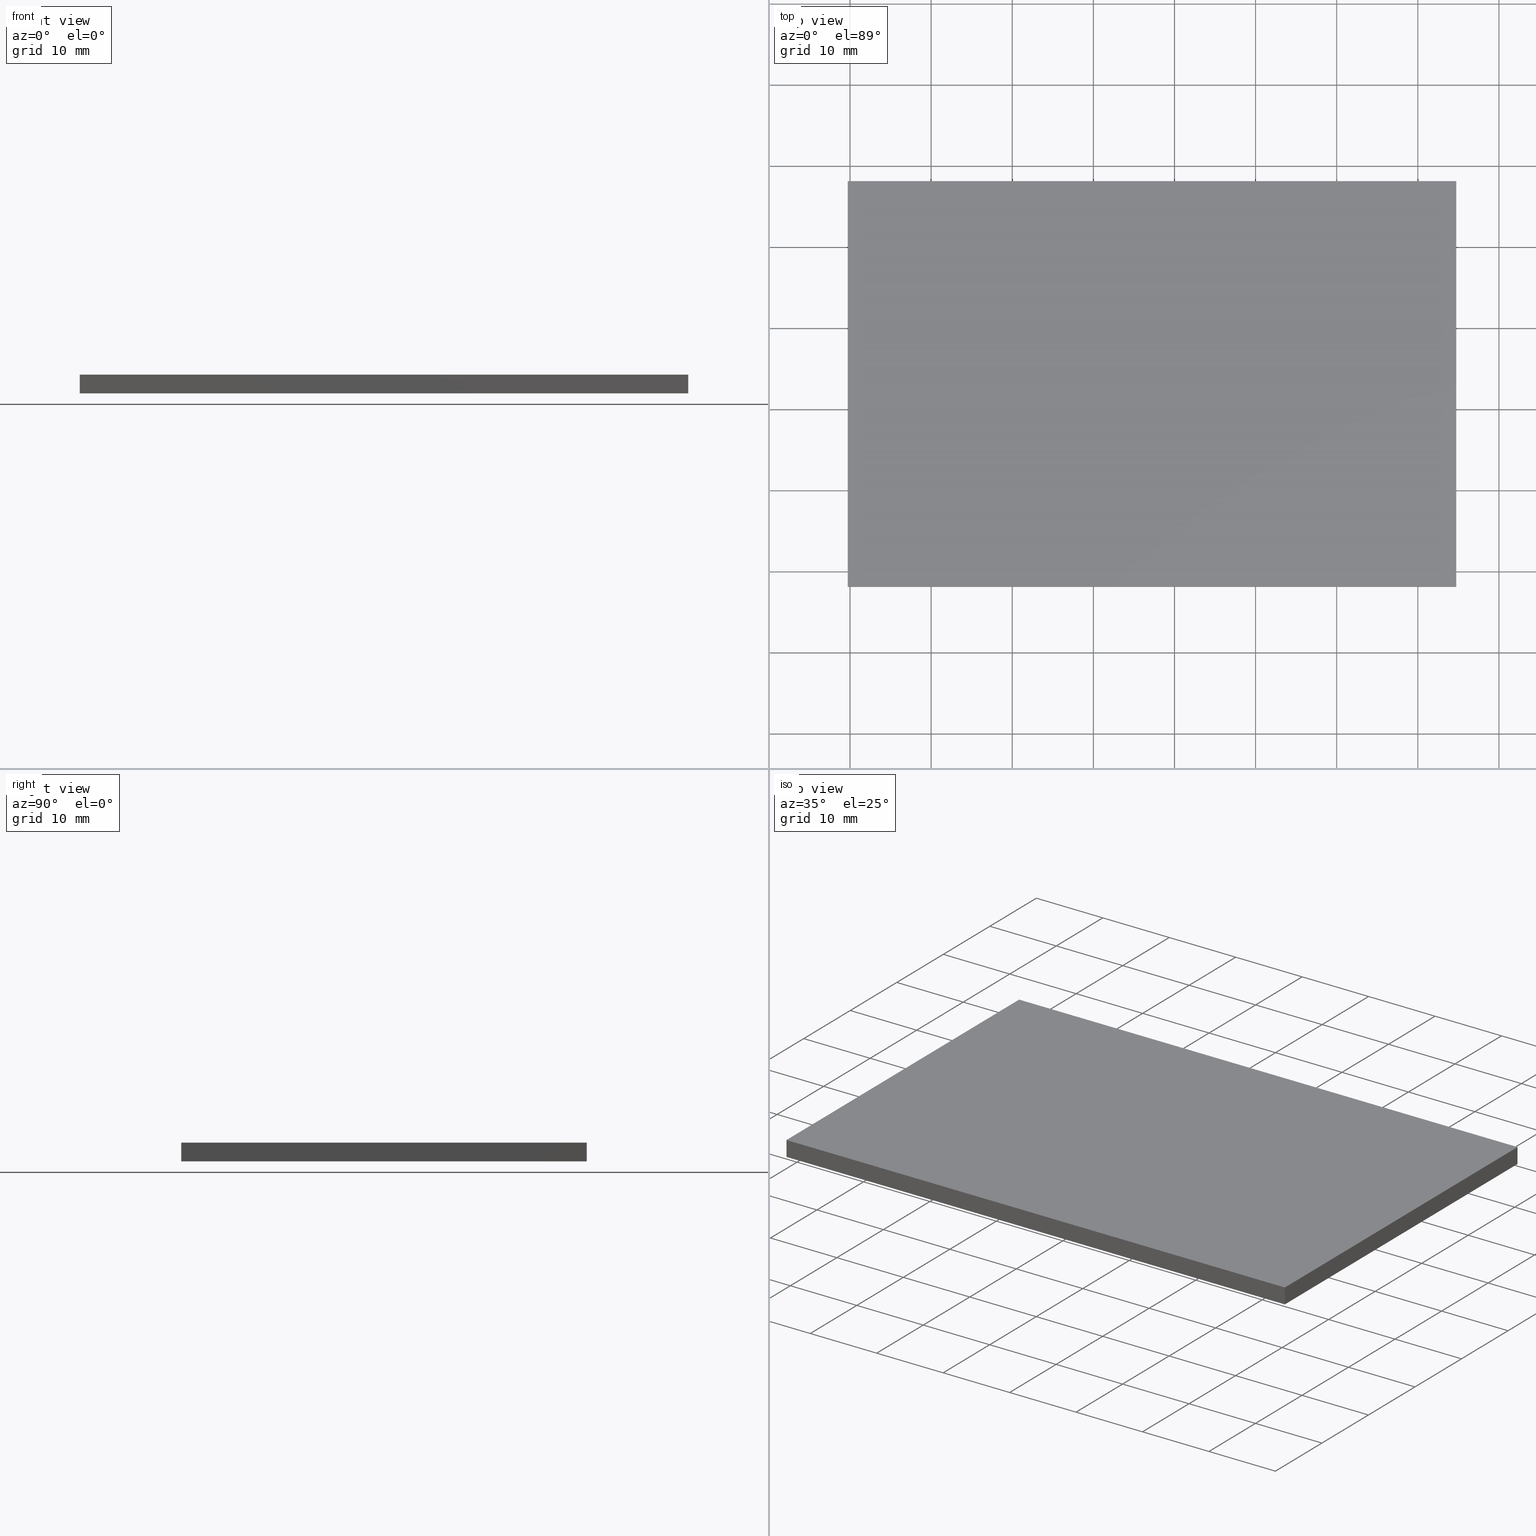
[diagram: canonical four-view strip — front | top / right | iso, engineering-drawing reading convention]
A machine part, canonical four-view strip (front | top / right | iso — engineering-drawing reading convention). The complete STEP part file that produces these views, byte-faithful:
ISO-10303-21;
HEADER;
FILE_DESCRIPTION (( 'STEP AP214' ),
    '1' );
FILE_NAME ('302525.STEP',
    '2019-08-13T06:59:10',
    ( '' ),
    ( '' ),
    'SwSTEP 2.0',
    'SolidWorks 2016',
    '' );
FILE_SCHEMA (( 'AUTOMOTIVE_DESIGN' ));
ENDSEC;

DATA;
#1 = ORIENTED_EDGE ( 'NONE', *, *, #138, .T. ) ;
#2 = VECTOR ( 'NONE', #85, 1000.000000000000000 ) ;
#3 = PRODUCT_CONTEXT ( 'NONE', #178, 'mechanical' ) ;
#4 =( LENGTH_UNIT ( ) NAMED_UNIT ( * ) SI_UNIT ( .MILLI., .METRE. ) );
#5 = DIRECTION ( 'NONE',  ( -0.0000000000000000000, -0.0000000000000000000, -1.000000000000000000 ) ) ;
#6 = ORIENTED_EDGE ( 'NONE', *, *, #28, .F. ) ;
#7 = DIRECTION ( 'NONE',  ( -0.0000000000000000000, 1.000000000000000000, -0.0000000000000000000 ) ) ;
#8 = ADVANCED_FACE ( 'NONE', ( #114 ), #147, .F. ) ;
#9 = MECHANICAL_DESIGN_GEOMETRIC_PRESENTATION_REPRESENTATION (  '', ( #88 ), #16 ) ;
#10 = ORIENTED_EDGE ( 'NONE', *, *, #137, .T. ) ;
#11 = PRESENTATION_LAYER_ASSIGNMENT (  '', '', ( #80 ) ) ;
#12 = MANIFOLD_SOLID_BREP ( '͹̨-����1', #20 ) ;
#13 = LINE ( 'NONE', #118, #73 ) ;
#14 = CARTESIAN_POINT ( 'NONE',  ( 179.7299678845673700, 148.1264836690531300, 2.299999999999999800 ) ) ;
#15 = PLANE ( 'NONE',  #151 ) ;
#16 =( GEOMETRIC_REPRESENTATION_CONTEXT ( 3 ) GLOBAL_UNCERTAINTY_ASSIGNED_CONTEXT ( ( #185 ) ) GLOBAL_UNIT_ASSIGNED_CONTEXT ( ( #50, #47, #161 ) ) REPRESENTATION_CONTEXT ( 'NONE', 'WORKASPACE' ) );
#17 = DIRECTION ( 'NONE',  ( 1.000000000000000000, 0.0000000000000000000, 0.0000000000000000000 ) ) ;
#18 = PLANE ( 'NONE',  #175 ) ;
#19 =( NAMED_UNIT ( * ) SI_UNIT ( $, .STERADIAN. ) SOLID_ANGLE_UNIT ( ) );
#20 = CLOSED_SHELL ( 'NONE', ( #182, #183, #166, #105, #23, #8 ) ) ;
#21 = FACE_OUTER_BOUND ( 'NONE', #38, .T. ) ;
#22 = DIRECTION ( 'NONE',  ( -1.000000000000000000, 0.0000000000000000000, 0.0000000000000000000 ) ) ;
#23 = ADVANCED_FACE ( 'NONE', ( #21 ), #49, .T. ) ;
#24 = EDGE_CURVE ( 'NONE', #153, #89, #42, .T. ) ;
#25 = EDGE_LOOP ( 'NONE', ( #197, #119, #165, #70 ) ) ;
#26 = ORIENTED_EDGE ( 'NONE', *, *, #138, .F. ) ;
#27 = FACE_OUTER_BOUND ( 'NONE', #25, .T. ) ;
#28 = EDGE_CURVE ( 'NONE', #109, #152, #56, .T. ) ;
#29 = ORIENTED_EDGE ( 'NONE', *, *, #191, .T. ) ;
#30 = VECTOR ( 'NONE', #160, 1000.000000000000000 ) ;
#31 = ORIENTED_EDGE ( 'NONE', *, *, #181, .F. ) ;
#32 = DIRECTION ( 'NONE',  ( -1.000000000000000000, -3.700743415417189100E-016, -0.0000000000000000000 ) ) ;
#33 = ORIENTED_EDGE ( 'NONE', *, *, #128, .T. ) ;
#34 = DIRECTION ( 'NONE',  ( 0.0000000000000000000, -0.0000000000000000000, 1.000000000000000000 ) ) ;
#35 = DIRECTION ( 'NONE',  ( 0.0000000000000000000, 0.0000000000000000000, 1.000000000000000000 ) ) ;
#36 = PLANE ( 'NONE',  #95 ) ;
#37 = CARTESIAN_POINT ( 'NONE',  ( 179.7299678845673700, 98.12648366905320100, 2.299999999999999800 ) ) ;
#38 = EDGE_LOOP ( 'NONE', ( #187, #100, #1, #29 ) ) ;
#39 = PRODUCT_DEFINITION_SHAPE ( 'NONE', 'NONE',  #54 ) ;
#40 = EDGE_CURVE ( 'NONE', #76, #194, #108, .T. ) ;
#41 = VECTOR ( 'NONE', #32, 1000.000000000000000 ) ;
#42 = LINE ( 'NONE', #143, #2 ) ;
#43 = VERTEX_POINT ( 'NONE', #145 ) ;
#44 = VECTOR ( 'NONE', #98, 1000.000000000000000 ) ;
#45 = CARTESIAN_POINT ( 'NONE',  ( 254.7299678845673700, 148.1264836690531600, 2.299999999999999800 ) ) ;
#46 = CARTESIAN_POINT ( 'NONE',  ( 179.7299678845673700, 148.1264836690531300, 0.0000000000000000000 ) ) ;
#47 =( NAMED_UNIT ( * ) PLANE_ANGLE_UNIT ( ) SI_UNIT ( $, .RADIAN. ) );
#48 = DIRECTION ( 'NONE',  ( -0.0000000000000000000, -0.0000000000000000000, -1.000000000000000000 ) ) ;
#49 = PLANE ( 'NONE',  #126 ) ;
#50 =( LENGTH_UNIT ( ) NAMED_UNIT ( * ) SI_UNIT ( .MILLI., .METRE. ) );
#51 = DIRECTION ( 'NONE',  ( -0.0000000000000000000, 0.0000000000000000000, 1.000000000000000000 ) ) ;
#52 = UNCERTAINTY_MEASURE_WITH_UNIT (LENGTH_MEASURE( 1.000000000000000100E-005 ), #4, 'distance_accuracy_value', 'NONE');
#53 = CARTESIAN_POINT ( 'NONE',  ( 179.7299678845673700, 148.1264836690531300, 0.0000000000000000000 ) ) ;
#54 = PRODUCT_DEFINITION ( 'δ֪', '', #61, #130 ) ;
#55 = VERTEX_POINT ( 'NONE', #196 ) ;
#56 = LINE ( 'NONE', #133, #167 ) ;
#57 = AXIS2_PLACEMENT_3D ( 'NONE', #115, #51, #117 ) ;
#58 = SHAPE_DEFINITION_REPRESENTATION ( #39, #82 ) ;
#59 = LINE ( 'NONE', #62, #83 ) ;
#60 = EDGE_LOOP ( 'NONE', ( #10, #6, #199, #168 ) ) ;
#61 = PRODUCT_DEFINITION_FORMATION_WITH_SPECIFIED_SOURCE ( '�κ�', '', #169, .NOT_KNOWN. ) ;
#62 = CARTESIAN_POINT ( 'NONE',  ( 179.7299678845673700, 148.1264836690531300, 2.299999999999999800 ) ) ;
#63 = DIRECTION ( 'NONE',  ( -0.0000000000000000000, 0.0000000000000000000, -1.000000000000000000 ) ) ;
#64 = AXIS2_PLACEMENT_3D ( 'NONE', #14, #132, #63 ) ;
#65 = ORIENTED_EDGE ( 'NONE', *, *, #200, .T. ) ;
#66 = CARTESIAN_POINT ( 'NONE',  ( 0.0000000000000000000, 0.0000000000000000000, 0.0000000000000000000 ) ) ;
#67 =( NAMED_UNIT ( * ) SI_UNIT ( $, .STERADIAN. ) SOLID_ANGLE_UNIT ( ) );
#68 = DIRECTION ( 'NONE',  ( 0.0000000000000000000, 0.0000000000000000000, 1.000000000000000000 ) ) ;
#69 = CARTESIAN_POINT ( 'NONE',  ( 254.7299678845673700, 98.12648366905320100, 0.0000000000000000000 ) ) ;
#70 = ORIENTED_EDGE ( 'NONE', *, *, #90, .T. ) ;
#71 = AXIS2_PLACEMENT_3D ( 'NONE', #66, #35, #192 ) ;
#72 = ORIENTED_EDGE ( 'NONE', *, *, #181, .T. ) ;
#73 = VECTOR ( 'NONE', #7, 1000.000000000000000 ) ;
#74 = ORIENTED_EDGE ( 'NONE', *, *, #28, .T. ) ;
#75 = LINE ( 'NONE', #45, #30 ) ;
#76 = VERTEX_POINT ( 'NONE', #46 ) ;
#77 = LINE ( 'NONE', #37, #140 ) ;
#78 = SURFACE_STYLE_USAGE ( .BOTH. , #172 ) ;
#79 = FILL_AREA_STYLE ('',( #120 ) ) ;
#80 = STYLED_ITEM ( 'NONE', ( #201 ), #12 ) ;
#81 = SURFACE_STYLE_FILL_AREA ( #79 ) ;
#82 = ADVANCED_BREP_SHAPE_REPRESENTATION ( '302525', ( #12, #71 ), #159 ) ;
#83 = VECTOR ( 'NONE', #5, 1000.000000000000000 ) ;
#84 = SURFACE_SIDE_STYLE ('',( #202 ) ) ;
#85 = DIRECTION ( 'NONE',  ( 0.0000000000000000000, -1.000000000000000000, 0.0000000000000000000 ) ) ;
#86 = DIRECTION ( 'NONE',  ( 1.000000000000000000, 0.0000000000000000000, 0.0000000000000000000 ) ) ;
#87 = PRODUCT_RELATED_PRODUCT_CATEGORY ( 'part', '', ( #169 ) ) ;
#88 = STYLED_ITEM ( 'NONE', ( #123 ), #82 ) ;
#89 = VERTEX_POINT ( 'NONE', #102 ) ;
#90 = EDGE_CURVE ( 'NONE', #153, #76, #59, .T. ) ;
#91 = ORIENTED_EDGE ( 'NONE', *, *, #40, .F. ) ;
#92 = VECTOR ( 'NONE', #136, 1000.000000000000000 ) ;
#93 = DIRECTION ( 'NONE',  ( -1.000000000000000000, -3.700743415417189100E-016, -0.0000000000000000000 ) ) ;
#94 = CARTESIAN_POINT ( 'NONE',  ( 179.7299678845673700, 148.1264836690531300, 0.0000000000000000000 ) ) ;
#95 = AXIS2_PLACEMENT_3D ( 'NONE', #179, #22, #68 ) ;
#96 = SURFACE_STYLE_USAGE ( .BOTH. , #84 ) ;
#97 = DIRECTION ( 'NONE',  ( 1.000000000000000000, 3.700743415417189100E-016, 0.0000000000000000000 ) ) ;
#98 = DIRECTION ( 'NONE',  ( 1.000000000000000000, 0.0000000000000000000, 0.0000000000000000000 ) ) ;
#99 = PRESENTATION_LAYER_ASSIGNMENT (  '', '', ( #88 ) ) ;
#100 = ORIENTED_EDGE ( 'NONE', *, *, #170, .T. ) ;
#101 = DIRECTION ( 'NONE',  ( 0.0000000000000000000, 1.000000000000000000, 0.0000000000000000000 ) ) ;
#102 = CARTESIAN_POINT ( 'NONE',  ( 179.7299678845673700, 98.12648366905320100, 2.299999999999999800 ) ) ;
#103 = DIRECTION ( 'NONE',  ( -0.0000000000000000000, 1.000000000000000000, -0.0000000000000000000 ) ) ;
#104 = VECTOR ( 'NONE', #103, 1000.000000000000000 ) ;
#105 = ADVANCED_FACE ( 'NONE', ( #186 ), #15, .F. ) ;
#106 =( GEOMETRIC_REPRESENTATION_CONTEXT ( 3 ) GLOBAL_UNCERTAINTY_ASSIGNED_CONTEXT ( ( #112 ) ) GLOBAL_UNIT_ASSIGNED_CONTEXT ( ( #141, #135, #19 ) ) REPRESENTATION_CONTEXT ( 'NONE', 'WORKASPACE' ) );
#107 = ORIENTED_EDGE ( 'NONE', *, *, #90, .F. ) ;
#108 = LINE ( 'NONE', #94, #129 ) ;
#109 = VERTEX_POINT ( 'NONE', #174 ) ;
#110 = LINE ( 'NONE', #134, #92 ) ;
#111 = ORIENTED_EDGE ( 'NONE', *, *, #137, .F. ) ;
#112 = UNCERTAINTY_MEASURE_WITH_UNIT (LENGTH_MEASURE( 1.000000000000000100E-005 ), #141, 'distance_accuracy_value', 'NONE');
#113 = FACE_OUTER_BOUND ( 'NONE', #124, .T. ) ;
#114 = FACE_OUTER_BOUND ( 'NONE', #155, .T. ) ;
#115 = CARTESIAN_POINT ( 'NONE',  ( 0.0000000000000000000, 0.0000000000000000000, 0.0000000000000000000 ) ) ;
#116 = LINE ( 'NONE', #149, #104 ) ;
#117 = DIRECTION ( 'NONE',  ( 1.000000000000000000, 0.0000000000000000000, 0.0000000000000000000 ) ) ;
#118 = CARTESIAN_POINT ( 'NONE',  ( 254.7299678845673700, 148.1264836690531600, 2.299999999999999800 ) ) ;
#119 = ORIENTED_EDGE ( 'NONE', *, *, #198, .F. ) ;
#120 = FILL_AREA_STYLE_COLOUR ( '', #150 ) ;
#121 = APPLICATION_PROTOCOL_DEFINITION ( 'draft international standard', 'automotive_design', 1998, #178 ) ;
#122 = CARTESIAN_POINT ( 'NONE',  ( 179.7299678845673700, 148.1264836690531300, 2.299999999999999800 ) ) ;
#123 = PRESENTATION_STYLE_ASSIGNMENT (( #96 ) ) ;
#124 = EDGE_LOOP ( 'NONE', ( #72, #139, #26, #74 ) ) ;
#125 = LINE ( 'NONE', #156, #44 ) ;
#126 = AXIS2_PLACEMENT_3D ( 'NONE', #163, #193, #17 ) ;
#127 = EDGE_LOOP ( 'NONE', ( #65, #107, #184, #33 ) ) ;
#128 = EDGE_CURVE ( 'NONE', #43, #55, #75, .T. ) ;
#129 = VECTOR ( 'NONE', #176, 1000.000000000000000 ) ;
#130 = PRODUCT_DEFINITION_CONTEXT ( 'detailed design', #177, 'design' ) ;
#131 = LINE ( 'NONE', #188, #41 ) ;
#132 = DIRECTION ( 'NONE',  ( 1.000000000000000000, 0.0000000000000000000, -0.0000000000000000000 ) ) ;
#133 = CARTESIAN_POINT ( 'NONE',  ( 254.7299678845673700, 98.12648366905320100, 2.299999999999999800 ) ) ;
#134 = CARTESIAN_POINT ( 'NONE',  ( 179.7299678845673700, 98.12648366905320100, 2.299999999999999800 ) ) ;
#135 =( NAMED_UNIT ( * ) PLANE_ANGLE_UNIT ( ) SI_UNIT ( $, .RADIAN. ) );
#136 = DIRECTION ( 'NONE',  ( -0.0000000000000000000, -0.0000000000000000000, -1.000000000000000000 ) ) ;
#137 = EDGE_CURVE ( 'NONE', #194, #152, #125, .T. ) ;
#138 = EDGE_CURVE ( 'NONE', #109, #43, #13, .T. ) ;
#139 = ORIENTED_EDGE ( 'NONE', *, *, #128, .F. ) ;
#140 = VECTOR ( 'NONE', #86, 1000.000000000000000 ) ;
#141 =( LENGTH_UNIT ( ) NAMED_UNIT ( * ) SI_UNIT ( .MILLI., .METRE. ) );
#142 = CARTESIAN_POINT ( 'NONE',  ( 179.7299678845673700, 98.12648366905320100, 0.0000000000000000000 ) ) ;
#143 = CARTESIAN_POINT ( 'NONE',  ( 179.7299678845673700, 148.1264836690531300, 2.299999999999999800 ) ) ;
#144 = APPLICATION_PROTOCOL_DEFINITION ( 'draft international standard', 'automotive_design', 1998, #177 ) ;
#145 = CARTESIAN_POINT ( 'NONE',  ( 254.7299678845673700, 148.1264836690531600, 2.299999999999999800 ) ) ;
#146 = ORIENTED_EDGE ( 'NONE', *, *, #200, .F. ) ;
#147 = PLANE ( 'NONE',  #57 ) ;
#148 = FILL_AREA_STYLE ('',( #158 ) ) ;
#149 = CARTESIAN_POINT ( 'NONE',  ( 254.7299678845673700, 148.1264836690531600, 0.0000000000000000000 ) ) ;
#150 = COLOUR_RGB ( '',1.000000000000000000, 1.000000000000000000, 1.000000000000000000 ) ;
#151 = AXIS2_PLACEMENT_3D ( 'NONE', #173, #190, #97 ) ;
#152 = VERTEX_POINT ( 'NONE', #69 ) ;
#153 = VERTEX_POINT ( 'NONE', #122 ) ;
#154 = MECHANICAL_DESIGN_GEOMETRIC_PRESENTATION_REPRESENTATION (  '', ( #80 ), #106 ) ;
#155 = EDGE_LOOP ( 'NONE', ( #91, #146, #31, #111 ) ) ;
#156 = CARTESIAN_POINT ( 'NONE',  ( 179.7299678845673700, 98.12648366905320100, 0.0000000000000000000 ) ) ;
#157 = FACE_OUTER_BOUND ( 'NONE', #60, .T. ) ;
#158 = FILL_AREA_STYLE_COLOUR ( '', #162 ) ;
#159 =( GEOMETRIC_REPRESENTATION_CONTEXT ( 3 ) GLOBAL_UNCERTAINTY_ASSIGNED_CONTEXT ( ( #52 ) ) GLOBAL_UNIT_ASSIGNED_CONTEXT ( ( #4, #164, #67 ) ) REPRESENTATION_CONTEXT ( 'NONE', 'WORKASPACE' ) );
#160 = DIRECTION ( 'NONE',  ( -0.0000000000000000000, -0.0000000000000000000, -1.000000000000000000 ) ) ;
#161 =( NAMED_UNIT ( * ) SI_UNIT ( $, .STERADIAN. ) SOLID_ANGLE_UNIT ( ) );
#162 = COLOUR_RGB ( '',1.000000000000000000, 1.000000000000000000, 1.000000000000000000 ) ;
#163 = CARTESIAN_POINT ( 'NONE',  ( 0.0000000000000000000, 0.0000000000000000000, 2.299999999999999800 ) ) ;
#164 =( NAMED_UNIT ( * ) PLANE_ANGLE_UNIT ( ) SI_UNIT ( $, .RADIAN. ) );
#165 = ORIENTED_EDGE ( 'NONE', *, *, #24, .F. ) ;
#166 = ADVANCED_FACE ( 'NONE', ( #113 ), #36, .F. ) ;
#167 = VECTOR ( 'NONE', #48, 1000.000000000000000 ) ;
#168 = ORIENTED_EDGE ( 'NONE', *, *, #198, .T. ) ;
#169 = PRODUCT ( '302525', '302525', '', ( #3 ) ) ;
#170 = EDGE_CURVE ( 'NONE', #89, #109, #77, .T. ) ;
#171 = VECTOR ( 'NONE', #93, 1000.000000000000000 ) ;
#172 = SURFACE_SIDE_STYLE ('',( #81 ) ) ;
#173 = CARTESIAN_POINT ( 'NONE',  ( 179.7299678845673700, 148.1264836690531300, 2.299999999999999800 ) ) ;
#174 = CARTESIAN_POINT ( 'NONE',  ( 254.7299678845673700, 98.12648366905320100, 2.299999999999999800 ) ) ;
#175 = AXIS2_PLACEMENT_3D ( 'NONE', #189, #101, #34 ) ;
#176 = DIRECTION ( 'NONE',  ( 0.0000000000000000000, -1.000000000000000000, 0.0000000000000000000 ) ) ;
#177 = APPLICATION_CONTEXT ( 'automotive_design' ) ;
#178 = APPLICATION_CONTEXT ( 'automotive_design' ) ;
#179 = CARTESIAN_POINT ( 'NONE',  ( 254.7299678845673700, 148.1264836690531600, 2.299999999999999800 ) ) ;
#180 = LINE ( 'NONE', #53, #171 ) ;
#181 = EDGE_CURVE ( 'NONE', #152, #55, #116, .T. ) ;
#182 = ADVANCED_FACE ( 'NONE', ( #27 ), #195, .F. ) ;
#183 = ADVANCED_FACE ( 'NONE', ( #157 ), #18, .F. ) ;
#184 = ORIENTED_EDGE ( 'NONE', *, *, #191, .F. ) ;
#185 = UNCERTAINTY_MEASURE_WITH_UNIT (LENGTH_MEASURE( 1.000000000000000100E-005 ), #50, 'distance_accuracy_value', 'NONE');
#186 = FACE_OUTER_BOUND ( 'NONE', #127, .T. ) ;
#187 = ORIENTED_EDGE ( 'NONE', *, *, #24, .T. ) ;
#188 = CARTESIAN_POINT ( 'NONE',  ( 179.7299678845673700, 148.1264836690531300, 2.299999999999999800 ) ) ;
#189 = CARTESIAN_POINT ( 'NONE',  ( 179.7299678845673700, 98.12648366905320100, 2.299999999999999800 ) ) ;
#190 = DIRECTION ( 'NONE',  ( 3.700743415417189100E-016, -1.000000000000000000, 0.0000000000000000000 ) ) ;
#191 = EDGE_CURVE ( 'NONE', #43, #153, #131, .T. ) ;
#192 = DIRECTION ( 'NONE',  ( 1.000000000000000000, 0.0000000000000000000, 0.0000000000000000000 ) ) ;
#193 = DIRECTION ( 'NONE',  ( -0.0000000000000000000, 0.0000000000000000000, 1.000000000000000000 ) ) ;
#194 = VERTEX_POINT ( 'NONE', #142 ) ;
#195 = PLANE ( 'NONE',  #64 ) ;
#196 = CARTESIAN_POINT ( 'NONE',  ( 254.7299678845673700, 148.1264836690531600, 0.0000000000000000000 ) ) ;
#197 = ORIENTED_EDGE ( 'NONE', *, *, #40, .T. ) ;
#198 = EDGE_CURVE ( 'NONE', #89, #194, #110, .T. ) ;
#199 = ORIENTED_EDGE ( 'NONE', *, *, #170, .F. ) ;
#200 = EDGE_CURVE ( 'NONE', #55, #76, #180, .T. ) ;
#201 = PRESENTATION_STYLE_ASSIGNMENT (( #78 ) ) ;
#202 = SURFACE_STYLE_FILL_AREA ( #148 ) ;
ENDSEC;
END-ISO-10303-21;
